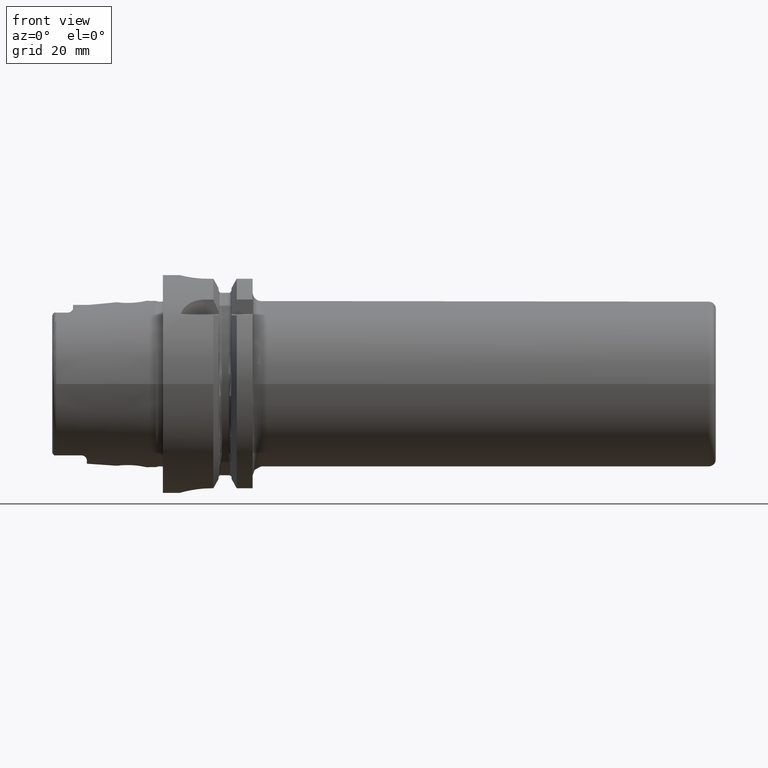
[diagram: clean part render]
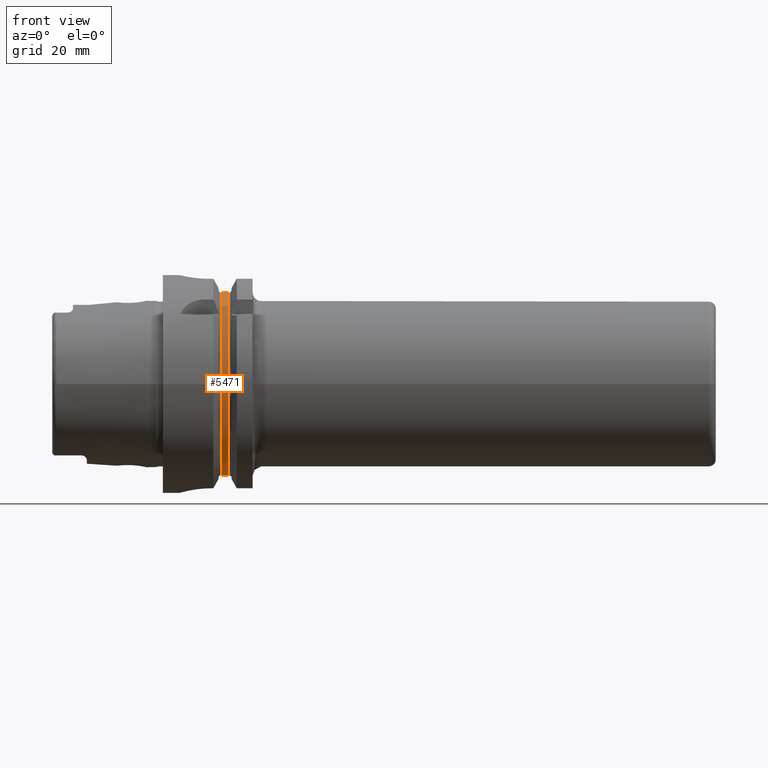
[diagram: same view with one face highlighted and labeled with its STEP entity id]
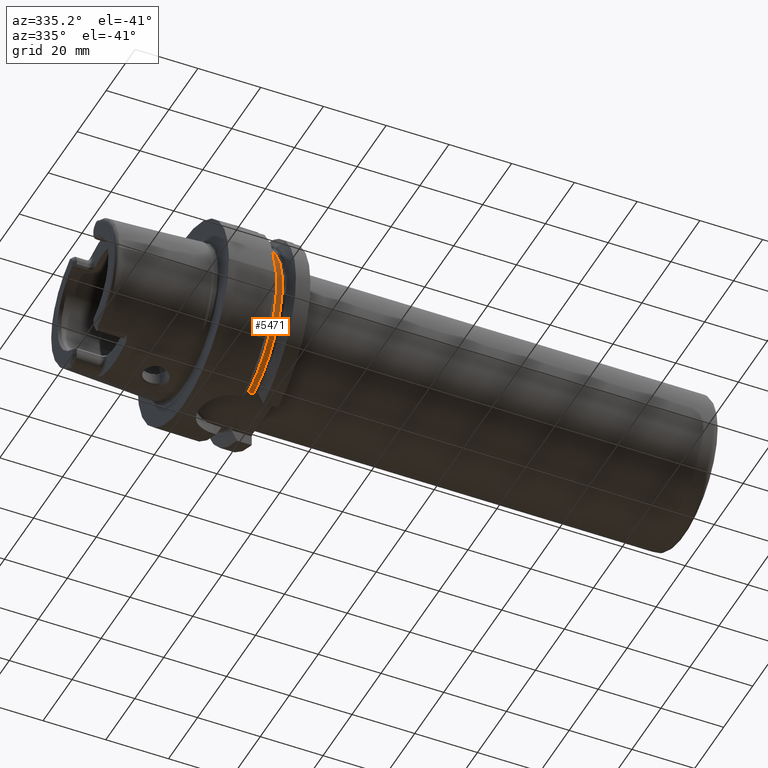
[diagram: same view with one face highlighted and labeled with its STEP entity id]
A machine part, front view. The second image highlights one B-rep face of the part: STEP entity #5471.
A second angle (auxiliary view) of the same face is appended — the face is thin or edge-on in the first view.
In plain terms, the highlighted cylindrical surface (partial cylindrical patch) has radius 27.5 mm, axis along (1, 0, 0).
Its self-contained STEP definition (entity closure, byte-faithful):
#1286=CARTESIAN_POINT('',(1.7125E1,-7.7E0,2.64E1));
#1431=CARTESIAN_POINT('',(1.8875E1,0.E0,0.E0));
#1432=DIRECTION('',(-1.E0,0.E0,0.E0));
#1433=DIRECTION('',(0.E0,-2.8E-1,-9.6E-1));
#1434=AXIS2_PLACEMENT_3D('',#1431,#1432,#1433);
#2115=DIRECTION('',(1.E0,0.E0,0.E0));
#2116=VECTOR('',#2115,1.75E0);
#2117=CARTESIAN_POINT('',(1.7125E1,-7.7E0,-2.64E1));
#2118=LINE('',#2117,#2116);
#2119=CARTESIAN_POINT('',(1.7125E1,0.E0,0.E0));
#2120=DIRECTION('',(-1.E0,0.E0,0.E0));
#2121=DIRECTION('',(0.E0,-2.8E-1,-9.6E-1));
#2122=AXIS2_PLACEMENT_3D('',#2119,#2120,#2121);
#2124=DIRECTION('',(1.E0,0.E0,0.E0));
#2125=VECTOR('',#2124,1.75E0);
#2126=CARTESIAN_POINT('',(1.7125E1,-7.7E0,2.64E1));
#2127=LINE('',#2126,#2125);
#3017=VERTEX_POINT('',#1286);
#3020=CARTESIAN_POINT('',(1.8875E1,-7.7E0,2.64E1));
#3021=VERTEX_POINT('',#3020);
#3042=CARTESIAN_POINT('',(1.7125E1,-7.7E0,-2.64E1));
#3043=CARTESIAN_POINT('',(1.8875E1,-7.7E0,-2.64E1));
#3044=VERTEX_POINT('',#3042);
#3045=VERTEX_POINT('',#3043);
#5460=CARTESIAN_POINT('',(1.415E1,0.E0,0.E0));
#5461=DIRECTION('',(1.E0,0.E0,0.E0));
#5462=DIRECTION('',(0.E0,-1.E0,0.E0));
#5463=AXIS2_PLACEMENT_3D('',#5460,#5461,#5462);
#5464=CYLINDRICAL_SURFACE('',#5463,2.75E1);
#5465=ORIENTED_EDGE('',*,*,#4652,.F.);
#5466=ORIENTED_EDGE('',*,*,#4514,.T.);
#5467=ORIENTED_EDGE('',*,*,#4744,.T.);
#5468=ORIENTED_EDGE('',*,*,#4620,.F.);
#5469=EDGE_LOOP('',(#5465,#5466,#5467,#5468));
#5470=FACE_OUTER_BOUND('',#5469,.F.);
#5471=ADVANCED_FACE('',(#5470),#5464,.T.);
#1435=CIRCLE('',#1434,2.75E1);
#2123=CIRCLE('',#2122,2.75E1);
#4514=EDGE_CURVE('',#3044,#3017,#2123,.T.);
#4620=EDGE_CURVE('',#3045,#3021,#1435,.T.);
#4652=EDGE_CURVE('',#3044,#3045,#2118,.T.);
#4744=EDGE_CURVE('',#3017,#3021,#2127,.T.);